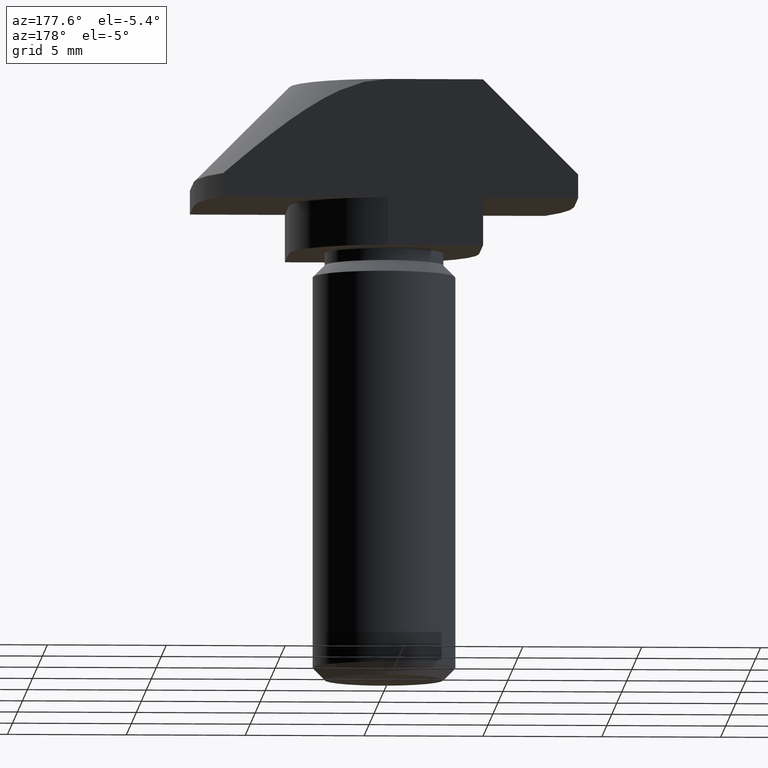
[diagram: clean part render]
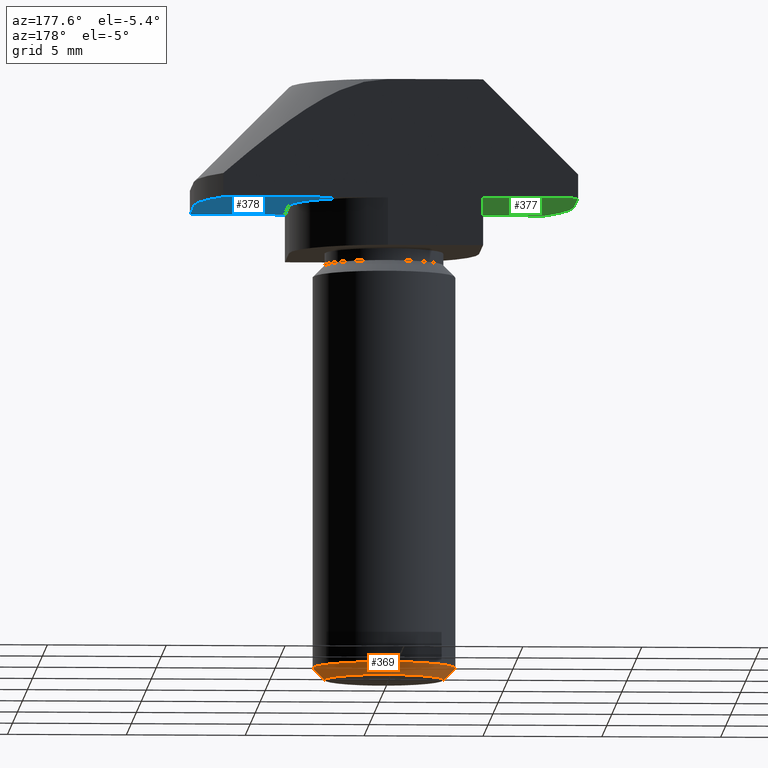
[diagram: same view with three faces highlighted in distinct colors, each labeled with its STEP entity id]
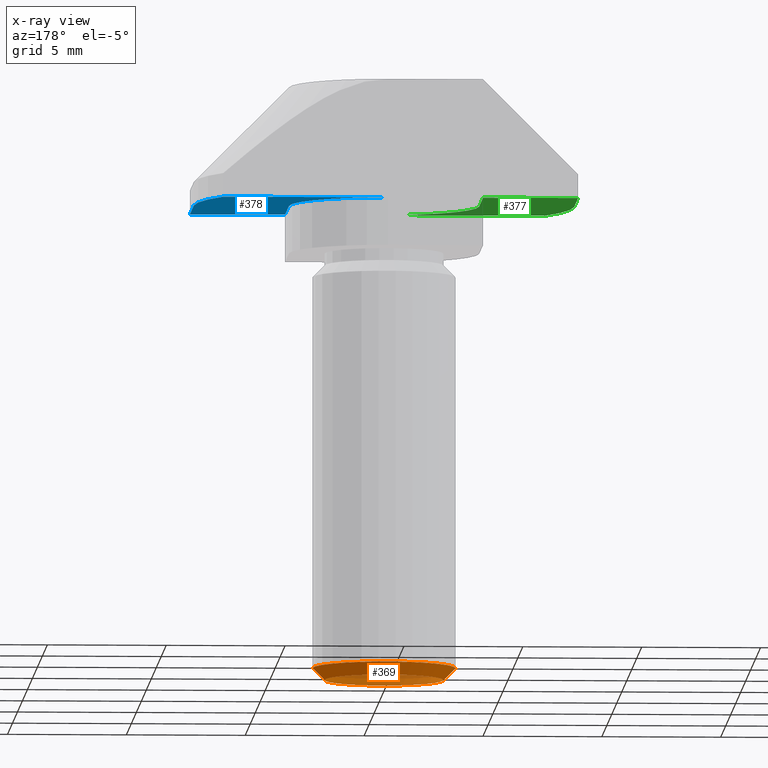
[diagram: x-ray of the same camera — body ghosted, the three highlighted faces saturated]
A machine part, auxiliary view with three faces highlighted in distinct colors.
The next image is the same camera in x-ray (body ghosted, the three faces saturated) — at least one of them is partly hidden behind the body in this view.
Their STEP definitions:

[orange] entity #369 — the highlighted conical surface has half-angle 45 deg.
#106=FACE_BOUND('',#137,.T.);
#111=FACE_OUTER_BOUND('',#136,.T.);
#136=EDGE_LOOP('',(#265));
#137=EDGE_LOOP('',(#266));
#162=CIRCLE('',#396,3.);
#163=CIRCLE('',#398,2.5);
#177=VERTEX_POINT('',#549);
#178=VERTEX_POINT('',#552);
#212=EDGE_CURVE('',#177,#177,#162,.T.);
#213=EDGE_CURVE('',#178,#178,#163,.T.);
#265=ORIENTED_EDGE('',*,*,#212,.T.);
#266=ORIENTED_EDGE('',*,*,#213,.T.);
#364=CONICAL_SURFACE('',#397,2.75,45.0000000000001);
#369=ADVANCED_FACE('',(#111,#106),#364,.T.);
#396=AXIS2_PLACEMENT_3D('',#550,#440,#441);
#397=AXIS2_PLACEMENT_3D('',#551,#442,#443);
#398=AXIS2_PLACEMENT_3D('',#553,#444,#445);
#440=DIRECTION('center_axis',(0.,0.,-1.));
#441=DIRECTION('ref_axis',(1.,0.,0.));
#442=DIRECTION('center_axis',(0.,0.,1.));
#443=DIRECTION('ref_axis',(1.,0.,0.));
#444=DIRECTION('center_axis',(0.,0.,1.));
#445=DIRECTION('ref_axis',(1.,0.,0.));
#549=CARTESIAN_POINT('',(-3.,3.67394039744206E-16,-24.5));
#550=CARTESIAN_POINT('Origin',(0.,0.,-24.5));
#551=CARTESIAN_POINT('Origin',(0.,0.,-24.75));
#552=CARTESIAN_POINT('',(-2.5,-3.06161699786838E-16,-25.));
#553=CARTESIAN_POINT('Origin',(0.,0.,-25.));

[blue] entity #378 — the highlighted planar face has unit normal (0, 0, -1).
#22=LINE('',#576,#56);
#32=LINE('',#601,#66);
#33=LINE('',#605,#67);
#34=LINE('',#606,#68);
#56=VECTOR('',#467,3.99999999999999);
#66=VECTOR('',#491,6.92820323027551);
#67=VECTOR('',#494,4.);
#68=VECTOR('',#495,4.00000000000001);
#90=PLANE('',#413);
#120=FACE_OUTER_BOUND('',#148,.T.);
#148=EDGE_LOOP('',(#299,#300,#301,#302,#303,#304));
#167=CIRCLE('',#408,3.99999999999999);
#170=CIRCLE('',#414,8.);
#186=VERTEX_POINT('',#574);
#187=VERTEX_POINT('',#575);
#190=VERTEX_POINT('',#583);
#195=VERTEX_POINT('',#600);
#196=VERTEX_POINT('',#602);
#197=VERTEX_POINT('',#604);
#222=EDGE_CURVE('',#186,#187,#22,.T.);
#226=EDGE_CURVE('',#187,#190,#167,.T.);
#235=EDGE_CURVE('',#195,#190,#32,.T.);
#236=EDGE_CURVE('',#195,#196,#170,.T.);
#237=EDGE_CURVE('',#196,#197,#33,.T.);
#238=EDGE_CURVE('',#186,#197,#34,.T.);
#299=ORIENTED_EDGE('',*,*,#222,.T.);
#300=ORIENTED_EDGE('',*,*,#226,.T.);
#301=ORIENTED_EDGE('',*,*,#235,.F.);
#302=ORIENTED_EDGE('',*,*,#236,.T.);
#303=ORIENTED_EDGE('',*,*,#237,.T.);
#304=ORIENTED_EDGE('',*,*,#238,.F.);
#378=ADVANCED_FACE('',(#120),#90,.T.);
#408=AXIS2_PLACEMENT_3D('',#584,#473,#474);
#413=AXIS2_PLACEMENT_3D('',#599,#489,#490);
#414=AXIS2_PLACEMENT_3D('',#603,#492,#493);
#467=DIRECTION('',(1.38777878078145E-16,1.,0.));
#473=DIRECTION('center_axis',(0.,0.,1.));
#474=DIRECTION('ref_axis',(0.,-1.,0.));
#489=DIRECTION('center_axis',(0.,0.,-1.));
#490=DIRECTION('ref_axis',(-1.,0.,0.));
#491=DIRECTION('',(-1.,0.,0.));
#492=DIRECTION('center_axis',(0.,0.,-1.));
#493=DIRECTION('ref_axis',(1.,0.,0.));
#494=DIRECTION('',(0.,-1.,0.));
#495=DIRECTION('',(1.,0.,0.));
#574=CARTESIAN_POINT('',(3.99999999999999,-3.99999999999999,-5.));
#575=CARTESIAN_POINT('',(3.99999999999999,-5.55111512312578E-16,-5.));
#576=CARTESIAN_POINT('',(3.99999999999999,1.10933564796705E-30,-5.));
#583=CARTESIAN_POINT('',(0.,3.99999999999998,-5.));
#584=CARTESIAN_POINT('Origin',(0.,0.,-5.));
#599=CARTESIAN_POINT('Origin',(8.,0.,-5.));
#600=CARTESIAN_POINT('',(6.92820323027551,4.,-5.));
#601=CARTESIAN_POINT('',(-8.,4.,-5.));
#602=CARTESIAN_POINT('',(8.,0.,-5.));
#603=CARTESIAN_POINT('Origin',(0.,0.,-5.));
#604=CARTESIAN_POINT('',(8.,-4.,-5.));
#605=CARTESIAN_POINT('',(8.,0.,-5.));
#606=CARTESIAN_POINT('',(-8.,-4.,-5.));

[green] entity #377 — the highlighted planar face has unit normal (0, 0, -1).
#17=LINE('',#561,#51);
#29=LINE('',#593,#63);
#30=LINE('',#597,#64);
#31=LINE('',#598,#65);
#51=VECTOR('',#454,3.99999999999999);
#63=VECTOR('',#484,6.92820323027551);
#64=VECTOR('',#487,4.);
#65=VECTOR('',#488,4.);
#89=PLANE('',#411);
#119=FACE_OUTER_BOUND('',#147,.T.);
#147=EDGE_LOOP('',(#293,#294,#295,#296,#297,#298));
#165=CIRCLE('',#404,3.99999999999997);
#169=CIRCLE('',#412,8.);
#180=VERTEX_POINT('',#559);
#181=VERTEX_POINT('',#560);
#184=VERTEX_POINT('',#568);
#192=VERTEX_POINT('',#592);
#193=VERTEX_POINT('',#594);
#194=VERTEX_POINT('',#596);
#215=EDGE_CURVE('',#180,#181,#17,.T.);
#219=EDGE_CURVE('',#181,#184,#165,.T.);
#231=EDGE_CURVE('',#192,#184,#29,.T.);
#232=EDGE_CURVE('',#192,#193,#169,.T.);
#233=EDGE_CURVE('',#193,#194,#30,.T.);
#234=EDGE_CURVE('',#180,#194,#31,.T.);
#293=ORIENTED_EDGE('',*,*,#219,.T.);
#294=ORIENTED_EDGE('',*,*,#231,.F.);
#295=ORIENTED_EDGE('',*,*,#232,.T.);
#296=ORIENTED_EDGE('',*,*,#233,.T.);
#297=ORIENTED_EDGE('',*,*,#234,.F.);
#298=ORIENTED_EDGE('',*,*,#215,.T.);
#377=ADVANCED_FACE('',(#119),#89,.T.);
#404=AXIS2_PLACEMENT_3D('',#569,#460,#461);
#411=AXIS2_PLACEMENT_3D('',#591,#482,#483);
#412=AXIS2_PLACEMENT_3D('',#595,#485,#486);
#454=DIRECTION('',(0.,-1.,0.));
#460=DIRECTION('center_axis',(0.,0.,1.));
#461=DIRECTION('ref_axis',(-4.99600361081323E-15,1.,0.));
#482=DIRECTION('center_axis',(0.,0.,-1.));
#483=DIRECTION('ref_axis',(-1.,0.,0.));
#484=DIRECTION('',(1.,0.,0.));
#485=DIRECTION('center_axis',(0.,0.,-1.));
#486=DIRECTION('ref_axis',(-1.,0.,0.));
#487=DIRECTION('',(0.,1.,0.));
#488=DIRECTION('',(-1.,0.,0.));
#559=CARTESIAN_POINT('',(-4.,3.99999999999998,-5.));
#560=CARTESIAN_POINT('',(-4.,-1.49880108324396E-14,-5.));
#561=CARTESIAN_POINT('',(-4.,-7.49400541621981E-15,-5.));
#568=CARTESIAN_POINT('',(0.,-3.99999999999999,-5.));
#569=CARTESIAN_POINT('Origin',(-1.99840144432528E-14,-1.66533453693773E-14,
-5.));
#591=CARTESIAN_POINT('Origin',(8.,0.,-5.));
#592=CARTESIAN_POINT('',(-6.92820323027551,-4.,-5.));
#593=CARTESIAN_POINT('',(-8.,-4.,-5.));
#594=CARTESIAN_POINT('',(-8.,0.,-5.));
#595=CARTESIAN_POINT('Origin',(0.,0.,-5.));
#596=CARTESIAN_POINT('',(-8.,4.,-5.));
#597=CARTESIAN_POINT('',(-8.,0.,-5.));
#598=CARTESIAN_POINT('',(-8.,4.,-5.));